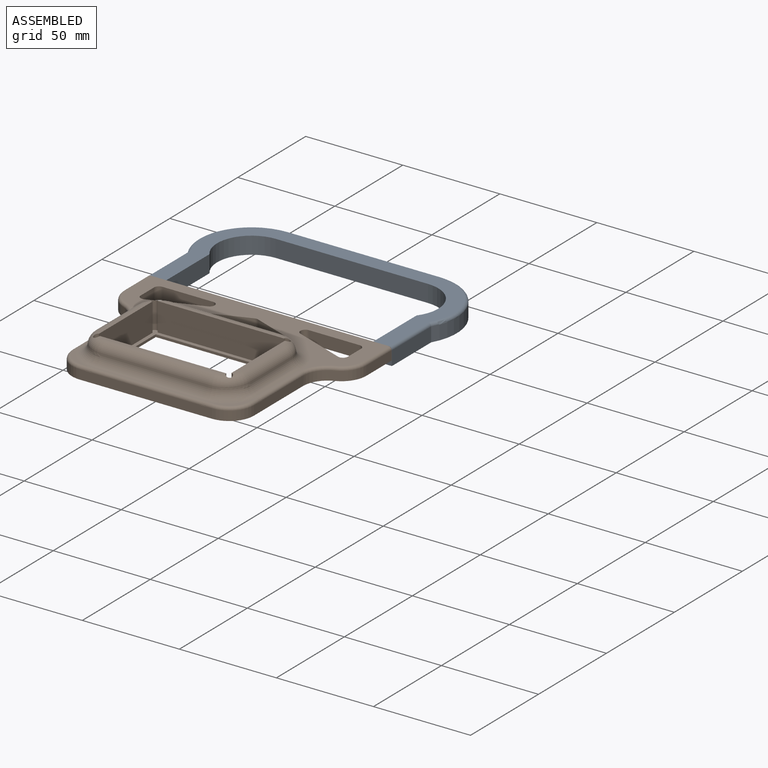
[diagram: assembled view]
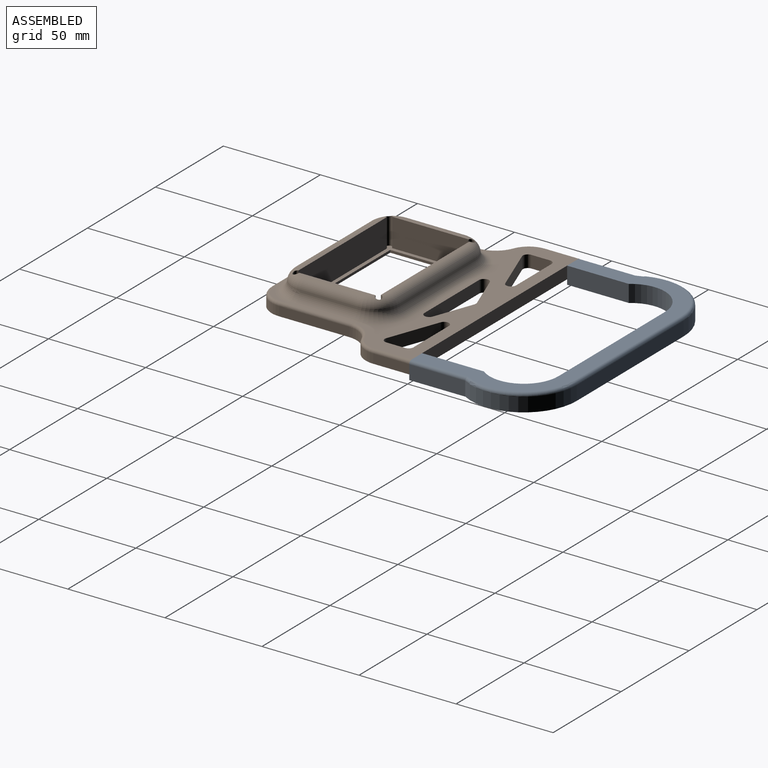
[diagram: assembled view, second angle]
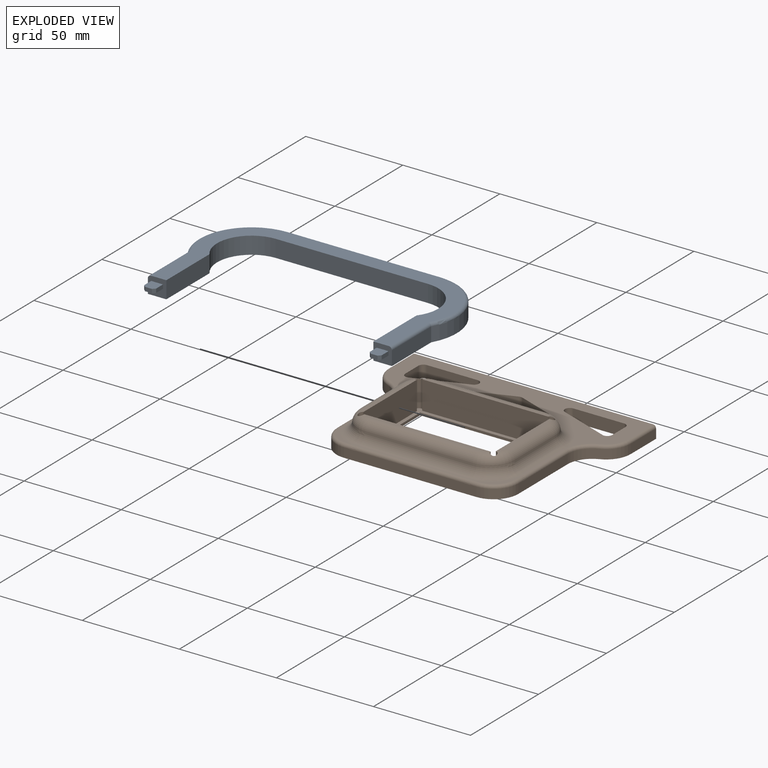
[diagram: exploded view]
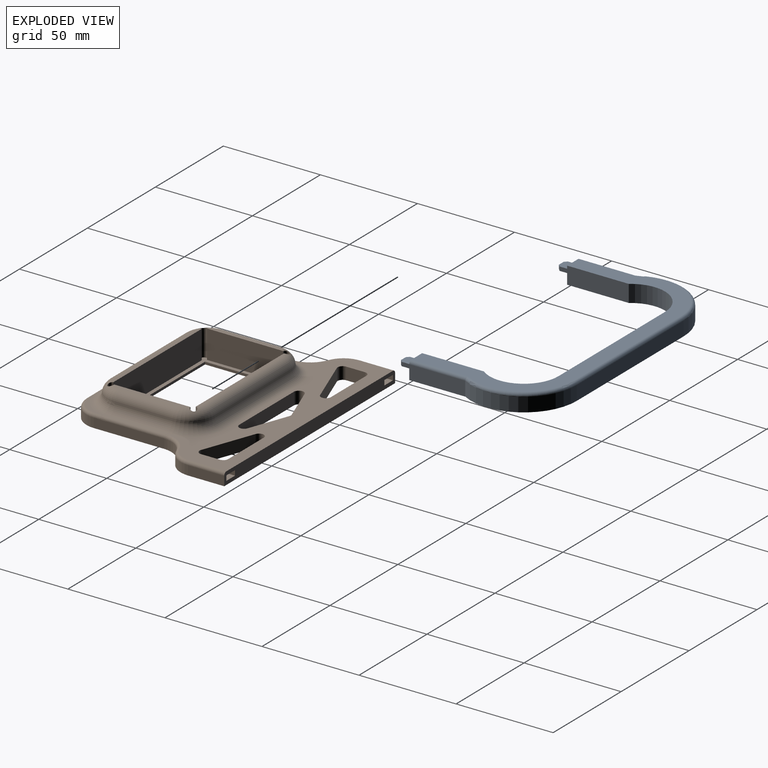
[diagram: exploded view, second angle]
ASSEMBLY  parts=2 mates=3
PART A: 33 faces, bbox 137.5x78.4x8.9 mm
  f0: plane 9.53x8.89mm, normal (0,-1,0), area 71.7mm2, adj f1,f11,f12,f13,f14,f15,f16,f17
  f1: plane 31.75x8.89mm, normal (1,0,0), area 282.3mm2, adj f0,f2,f12,f13
  f2: cylinder r=17.78mm len=28.58mm, axis (0,0,-1), area 351.4mm2, adj f1,f3,f12,f13
  f3: plane 78.42x8.89mm, normal (0,-1,0), area 697.2mm2, adj f2,f4,f12,f13
  f4: cylinder r=17.78mm len=28.58mm, axis (0,0,-1), area 351.4mm2, adj f3,f5,f12,f13
  f5: plane 31.75x8.89mm, normal (-1,0,0), area 282.3mm2, adj f4,f6,f12,f13
  f6: plane 9.53x8.89mm, normal (0,-1,0), area 71.7mm2, adj f5,f7,f12,f13,f19,f20,f21,f22
  f7: plane 28.9x7.3mm, normal (1,0,0), area 211.1mm2, adj f6,f8,f13,f26
  f8: cylinder r=27.3mm len=40.95mm, axis (0,0,-1), area 417.5mm2, adj f7,f9,f13,f28
  f9: plane 78.42x7.3mm, normal (0,1,0), area 572.7mm2, adj f8,f10,f13,f27
  f10: cylinder r=27.3mm len=40.95mm, axis (0,0,-1), area 417.5mm2, adj f9,f11,f13,f25
  f11: plane 28.9x7.3mm, normal (-1,0,0), area 211.1mm2, adj f0,f10,f13,f24
  f12: plane 129.86x68.26mm, normal (0,0,1), area 1851.8mm2, adj f0,f1,f2,f3,f4,f5,f6,f24
  f13: plane 133.03x69.85mm, normal (0,0,-1), area 2245.6mm2, adj f0,f1,f2,f3,f4,f5,f6,f7
  f14: plane 6.35x6.1mm, normal (0,0,-1), area 37.1mm2, adj f0,f15,f17,f18,f31,f32
  f15: plane 5.08x2.03mm, normal (1,0,0), area 10.3mm2, adj f0,f14,f16,f31
  f16: plane 6.35x6.1mm, normal (0,0,1), area 37.1mm2, adj f0,f15,f17,f18,f31,f32
  f17: plane 5.08x2.03mm, normal (-1,0,0), area 10.3mm2, adj f0,f14,f16,f32
  f18: plane 3.56x2.03mm, normal (0,-1,0), area 7.2mm2, adj f14,f16,f31,f32
  f19: plane 6.35x6.1mm, normal (0,0,-1), area 37.1mm2, adj f6,f20,f22,f23,f29,f30
  f20: plane 5.08x2.03mm, normal (1,0,0), area 10.3mm2, adj f6,f19,f21,f29
  f21: plane 6.35x6.1mm, normal (0,0,1), area 37.1mm2, adj f6,f20,f22,f23,f29,f30
  f22: plane 5.08x2.03mm, normal (-1,0,0), area 10.3mm2, adj f6,f19,f21,f30
  f23: plane 3.56x2.03mm, normal (0,-1,0), area 7.2mm2, adj f19,f21,f29,f30
  f24: cylinder r=1.59mm len=29.33mm, axis (0,1,0), area 72.5mm2, adj f0,f11,f12,f25
  f25: torus R=25.72mm, axis (0,0,1), area 139.9mm2, adj f10,f12,f24,f27
  f26: cylinder r=1.59mm len=29.33mm, axis (0,-1,0), area 72.5mm2, adj f6,f7,f12,f28
  f27: cylinder r=1.59mm len=78.42mm, axis (1,0,0), area 195.6mm2, adj f9,f12,f25,f28
  f28: torus R=25.72mm, axis (0,0,1), area 139.9mm2, adj f8,f12,f26,f27
  f29: plane 2.03x1.27mm, normal (0.71,-0.71,0), area 3.6mm2, adj f19,f20,f21,f23
  f30: plane 2.03x1.27mm, normal (-0.71,-0.71,0), area 3.6mm2, adj f19,f21,f22,f23
  f31: plane 2.03x1.27mm, normal (0.71,-0.71,0), area 3.6mm2, adj f14,f15,f16,f18
  f32: plane 2.03x1.27mm, normal (-0.71,-0.71,0), area 3.6mm2, adj f14,f16,f17,f18
PART B: 99 faces, bbox 127.8x95.2x15.9 mm
  f0: plane 64.05x1.29mm, normal (0,0,1), area 79.1mm2, adj f9,f96,f97,f98
  f1: plane 38.3x1.29mm, normal (0,0,1), area 45.9mm2, adj f20,f92,f94,f96
  f2: plane 38.3x1.29mm, normal (0,0,1), area 45.9mm2, adj f11,f93,f95,f97
  f3: plane 122.56x40.01mm, normal (0,0,1), area 2280.2mm2, adj f5,f22,f23,f24,f25,f26,f27,f28
  f4: plane 14.12x14.12mm, normal (0,0,1), area 31.6mm2, adj f44,f81,f82,f83
  f5: plane 125.73x6.35mm, normal (0,1,0), area 765mm2, adj f3,f7,f15,f19,f54,f55,f56,f57
  f6: plane 14.12x14.12mm, normal (0,0,1), area 31.6mm2, adj f40,f75,f76,f77
  f7: plane 125.73x91.1mm, normal (0,0,-1), area 5950.7mm2, adj f5,f15,f16,f17,f18,f19,f22,f23
  f8: cylinder r=1.59mm len=14.6mm, axis (0,0,-1), area 105.9mm2, adj f9,f20,f64,f96
  f9: plane 65.08x14.61mm, normal (0,1,0), area 950.4mm2, adj f0,f8,f10,f64,f96,f97
  f10: cylinder r=1.59mm len=14.6mm, axis (0,0,-1), area 105.9mm2, adj f9,f11,f64,f97
  f11: plane 39.33x14.61mm, normal (1,0,0), area 574.3mm2, adj f2,f10,f12,f64,f93,f97
  f12: cylinder r=1.59mm len=14.6mm, axis (0,0,-1), area 105.9mm2, adj f11,f13,f64,f93
  f13: plane 65.08x14.61mm, normal (0,-1,0), area 950.4mm2, adj f12,f14,f21,f64,f92,f93
  f14: cylinder r=1.59mm len=14.6mm, axis (0,0,-1), area 105.9mm2, adj f13,f20,f64,f92
  f15: plane 17.66x4.76mm, normal (-1,0,0), area 84.1mm2, adj f5,f7,f35,f90
  f16: plane 37.13x4.77mm, normal (-1,0,0), area 177.1mm2, adj f7,f31,f32,f83,f84,f85,f86
  f17: plane 68.25x4.77mm, normal (0,-1,0), area 325.5mm2, adj f7,f32,f33,f77,f78,f79,f80,f81
  f18: plane 36.15x4.77mm, normal (1,0,0), area 172.4mm2, adj f7,f33,f34,f73,f74,f75
  f19: plane 18.64x4.76mm, normal (1,0,0), area 88.8mm2, adj f5,f7,f36,f69
  f20: plane 39.33x14.61mm, normal (-1,0,0), area 574.3mm2, adj f1,f8,f14,f64,f92,f96
  f21: plane 64.05x1.29mm, normal (0,0,1), area 79.1mm2, adj f13,f91,f92,f93
  f22: plane 26.15x9.69mm, normal (-0.35,0.94,0), area 177.1mm2, adj f3,f7,f51,f53
  f23: plane 26.15x6.35mm, normal (0,-1,0), area 166.1mm2, adj f3,f7,f52,f53
  f24: plane 9.69x6.35mm, normal (1,0,0), area 61.5mm2, adj f3,f7,f51,f52
  f25: plane 40.24x6.35mm, normal (0,1,0), area 255.5mm2, adj f3,f7,f45,f47
  f26: plane 20.12x7.45mm, normal (-0.35,-0.94,0), area 136.2mm2, adj f3,f7,f46,f47
  f27: plane 20.12x7.45mm, normal (0.35,-0.94,0), area 136.2mm2, adj f3,f7,f45,f46
  f28: plane 26.15x9.69mm, normal (0.35,0.94,0), area 177.1mm2, adj f3,f7,f48,f50
  f29: plane 9.69x6.35mm, normal (-1,0,0), area 61.5mm2, adj f3,f7,f48,f49
  f30: plane 26.15x6.35mm, normal (0,-1,0), area 166.1mm2, adj f3,f7,f49,f50
  f31: cylinder r=12.7mm len=11.81mm, axis (0,0,1), area 72.2mm2, adj f7,f16,f35,f87,f88
  f32: cylinder r=12.7mm len=12.7mm, axis (0,0,-1), area 95mm2, adj f7,f16,f17,f82
  f33: cylinder r=12.7mm len=12.7mm, axis (0,0,-1), area 95mm2, adj f7,f17,f18,f76
  f34: cylinder r=12.7mm len=11.81mm, axis (0,0,1), area 72.2mm2, adj f7,f18,f36,f71,f72
  f35: cylinder r=12.7mm len=11.81mm, axis (0,0,1), area 72.2mm2, adj f7,f15,f31,f89
  f36: cylinder r=12.7mm len=11.81mm, axis (0,0,1), area 72.2mm2, adj f7,f19,f34,f70
  f37: torus R=17.78mm, axis (0,0,1), area 175.6mm2, adj f3,f38,f39,f72,f92
  f38: cylinder r=5.08mm len=29.8mm, axis (0,-1,0), area 221.1mm2, adj f37,f40,f73,f94
  f39: cylinder r=5.08mm len=55.55mm, axis (1,0,0), area 425.6mm2, adj f3,f37,f41,f91
  f40: torus R=17.78mm, axis (0,0,1), area 174.9mm2, adj f6,f38,f42,f74,f78,f96
  f41: torus R=17.78mm, axis (0,0,1), area 175.6mm2, adj f3,f39,f43,f86,f87,f93
  f42: cylinder r=5.08mm len=55.55mm, axis (-1,0,0), area 412.2mm2, adj f40,f44,f79,f98
  f43: cylinder r=5.08mm len=29.8mm, axis (0,1,0), area 221.1mm2, adj f41,f44,f85,f95
  f44: torus R=17.78mm, axis (0,0,1), area 174.9mm2, adj f4,f42,f43,f80,f84,f97
  f45: cylinder r=2.54mm len=6.35mm, axis (0,0,-1), area 44.9mm2, adj f3,f7,f25,f27
  f46: cylinder r=2.54mm len=6.35mm, axis (0,0,-1), area 11.4mm2, adj f3,f7,f26,f27
  f47: cylinder r=2.54mm len=6.35mm, axis (0,0,-1), area 44.9mm2, adj f3,f7,f25,f26
  f48: cylinder r=2.54mm len=6.35mm, axis (0,0,-1), area 31.1mm2, adj f3,f7,f28,f29
  f49: cylinder r=2.54mm len=6.35mm, axis (0,0,-1), area 25.3mm2, adj f3,f7,f29,f30
  f50: cylinder r=2.54mm len=6.35mm, axis (0,0,-1), area 44.9mm2, adj f3,f7,f28,f30
  f51: cylinder r=2.54mm len=6.35mm, axis (0,0,-1), area 31.1mm2, adj f3,f7,f22,f24
  f52: cylinder r=2.54mm len=6.35mm, axis (0,0,-1), area 25.3mm2, adj f3,f7,f23,f24
  f53: cylinder r=2.54mm len=6.35mm, axis (0,0,-1), area 44.9mm2, adj f3,f7,f22,f23
  f54: plane 7.62x6.35mm, normal (0,0,-1), area 48.4mm2, adj f5,f55,f57,f58
  f55: plane 7.62x2.54mm, normal (-1,0,0), area 19.4mm2, adj f5,f54,f56,f58
  f56: plane 7.62x6.35mm, normal (0,0,1), area 48.4mm2, adj f5,f55,f57,f58
  f57: plane 7.62x2.54mm, normal (1,0,0), area 19.4mm2, adj f5,f54,f56,f58
  f58: plane 6.35x2.54mm, normal (0,1,0), area 16.1mm2, adj f54,f55,f56,f57
  f59: plane 7.62x2.54mm, normal (1,0,0), area 19.4mm2, adj f5,f60,f62,f63
  f60: plane 7.62x6.35mm, normal (0,0,-1), area 48.4mm2, adj f5,f59,f61,f63
  f61: plane 7.62x2.54mm, normal (-1,0,0), area 19.4mm2, adj f5,f60,f62,f63
  f62: plane 7.62x6.35mm, normal (0,0,1), area 48.4mm2, adj f5,f59,f61,f63
  f63: plane 6.35x2.54mm, normal (0,1,0), area 16.1mm2, adj f59,f60,f61,f62
  f64: plane 71.43x45.68mm, normal (0,0,1), area 450.8mm2, adj f8,f9,f10,f11,f12,f13,f14,f20
  f65: plane 38.5x1.27mm, normal (-1,0,0), area 48.9mm2, adj f7,f64,f66,f68
  f66: plane 64.25x1.27mm, normal (0,1,0), area 81.6mm2, adj f7,f64,f65,f67
  f67: plane 38.5x1.27mm, normal (1,0,0), area 48.9mm2, adj f7,f64,f66,f68
  f68: plane 64.25x1.27mm, normal (0,-1,0), area 81.6mm2, adj f7,f64,f65,f67
  f69: cylinder r=1.59mm len=18.64mm, axis (0,-1,0), area 46.5mm2, adj f3,f5,f19,f70
  f70: torus R=11.11mm, axis (0,0,1), area 36.1mm2, adj f3,f36,f69,f71
  f71: torus R=14.29mm, axis (0,0,1), area 34.3mm2, adj f3,f34,f70,f72
  f72: bspline ~4.94x2.13mm, area 5.1mm2, adj f34,f37,f71,f73
  f73: cylinder r=1.59mm len=29.8mm, axis (0,-1,0), area 72.1mm2, adj f18,f38,f72,f74
  f74: bspline ~6.95x1.7mm, area 8.2mm2, adj f18,f40,f73,f75
  f75: cylinder r=1.59mm len=3.01mm, axis (0,-1,0), area 7.5mm2, adj f6,f18,f74,f76
  f76: torus R=11.11mm, axis (0,0,1), area 47.5mm2, adj f6,f33,f75,f77
  f77: cylinder r=1.59mm len=3.01mm, axis (-1,0,0), area 7.5mm2, adj f6,f17,f76,f78
  f78: bspline ~7.53x1.75mm, area 8.2mm2, adj f17,f40,f77,f79
  f79: cylinder r=1.59mm len=55.55mm, axis (-1,0,0), area 134.3mm2, adj f17,f42,f78,f80
  f80: bspline ~6.95x1.7mm, area 8.2mm2, adj f17,f44,f79,f81
  f81: cylinder r=1.59mm len=3.01mm, axis (-1,0,0), area 7.5mm2, adj f4,f17,f80,f82
  f82: torus R=11.11mm, axis (0,0,1), area 47.5mm2, adj f4,f32,f81,f83
  f83: cylinder r=1.59mm len=3.01mm, axis (0,1,0), area 7.5mm2, adj f4,f16,f82,f84
  f84: bspline ~6.95x1.7mm, area 8.2mm2, adj f16,f44,f83,f85
  f85: cylinder r=1.59mm len=29.8mm, axis (0,1,0), area 72.1mm2, adj f16,f43,f84,f86
  f86: bspline ~3.36x1.59mm, area 2.4mm2, adj f16,f41,f85,f87
  f87: bspline ~4.3x2.01mm, area 4mm2, adj f31,f41,f86,f88
  f88: torus R=14.29mm, axis (0,0,1), area 35.4mm2, adj f3,f31,f87,f89
  f89: torus R=11.11mm, axis (0,0,1), area 36.1mm2, adj f3,f35,f88,f90
  f90: cylinder r=1.59mm len=17.66mm, axis (0,1,0), area 44mm2, adj f3,f5,f15,f89
  f91: cylinder r=5.08mm len=55.55mm, axis (1,0,0), area 425.6mm2, adj f21,f39,f92,f93
  f92: torus R=7.64mm, axis (0,0,-1), area 121.6mm2, adj f1,f13,f14,f20,f21,f37,f91,f94
  f93: torus R=7.64mm, axis (0,0,-1), area 121.6mm2, adj f2,f11,f12,f13,f21,f41,f91,f95
  f94: cylinder r=5.08mm len=29.8mm, axis (0,-1,0), area 228.3mm2, adj f1,f38,f92,f96
  f95: cylinder r=5.08mm len=29.8mm, axis (0,1,0), area 228.3mm2, adj f2,f43,f93,f97
  f96: torus R=7.64mm, axis (0,0,-1), area 121.6mm2, adj f0,f1,f8,f9,f20,f40,f94,f98
  f97: torus R=7.64mm, axis (0,0,-1), area 121.6mm2, adj f0,f2,f9,f10,f11,f44,f95,f98
  f98: cylinder r=5.08mm len=55.55mm, axis (-1,0,0), area 425.6mm2, adj f0,f42,f96,f97
PLACE A t=(33.36,17.31,22.41)mm
PLACE B t=(33.23,17.31,24.95)mm
MATE planar B.f55 <-> A.f20  axis (-1,0,0) through (94.51,29.38,28.13)mm
MATE planar A.f19 <-> B.f56  axis (0,0,-1) through (91.46,30.13,26.86)mm
MATE planar B.f5 <-> A.f6  axis (0,1,0) through (33.23,33.19,28.12)mm
